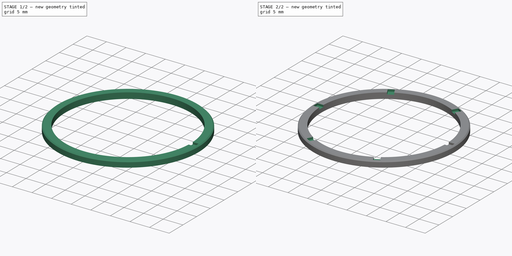
[diagram: build sequence overview — one tinted view per stage of 2, left to right]
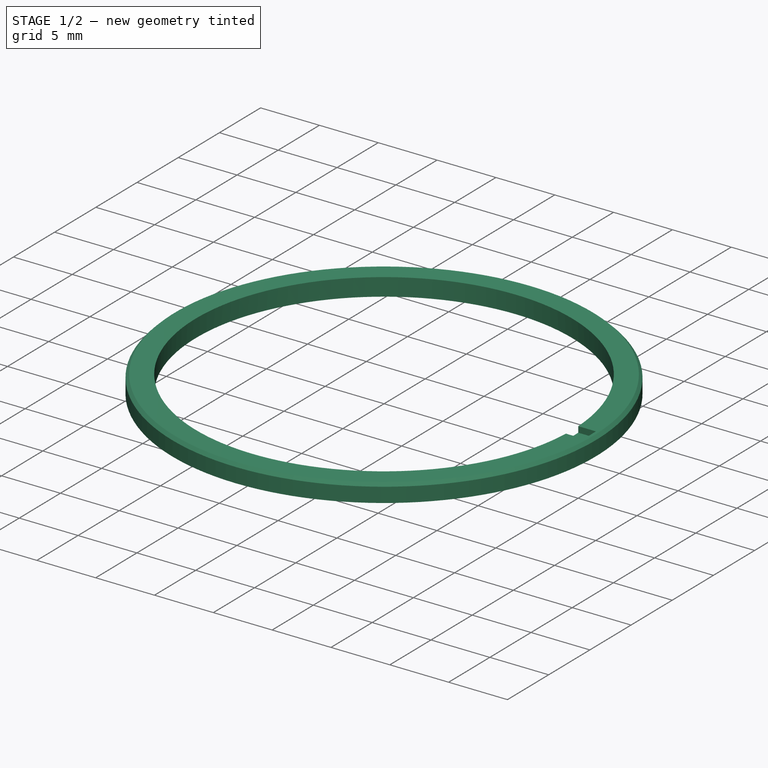
[diagram: stage 1 of 2 — iso view after this stage's code; geometry added in this stage tinted green]
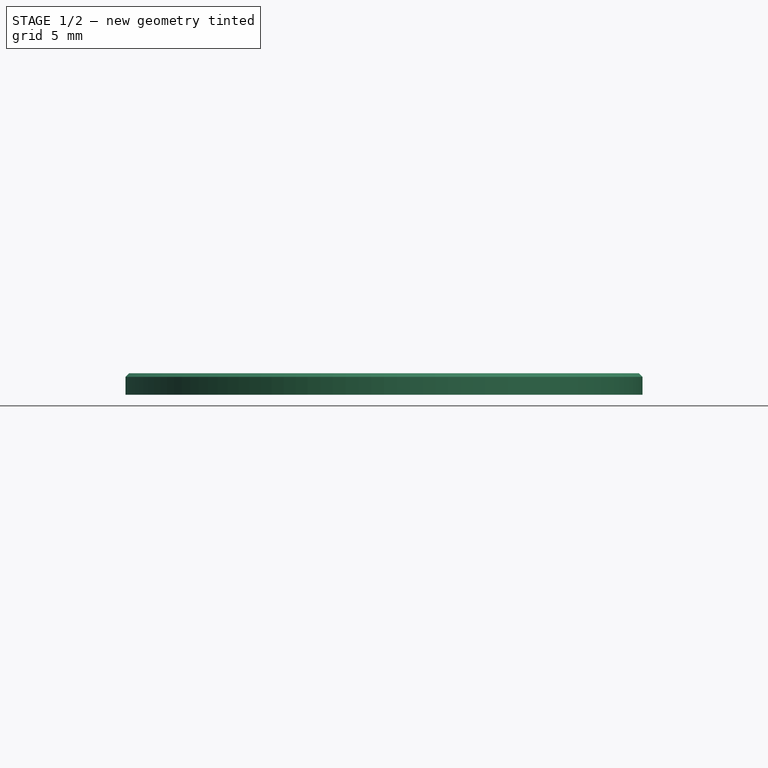
[diagram: stage 1 of 2 — front view after this stage's code; geometry added in this stage tinted green]
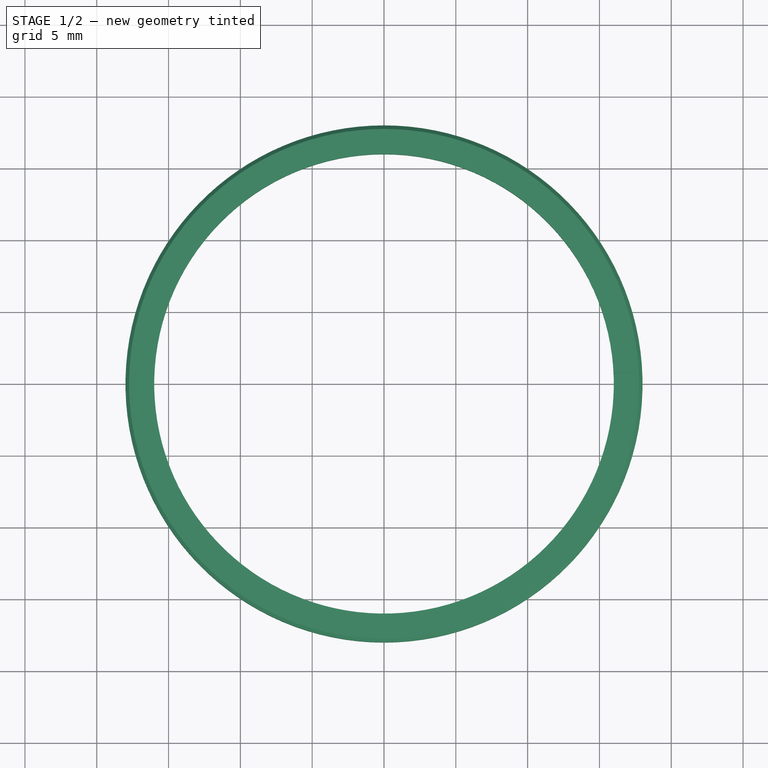
[diagram: stage 1 of 2 — top view after this stage's code; geometry added in this stage tinted green]
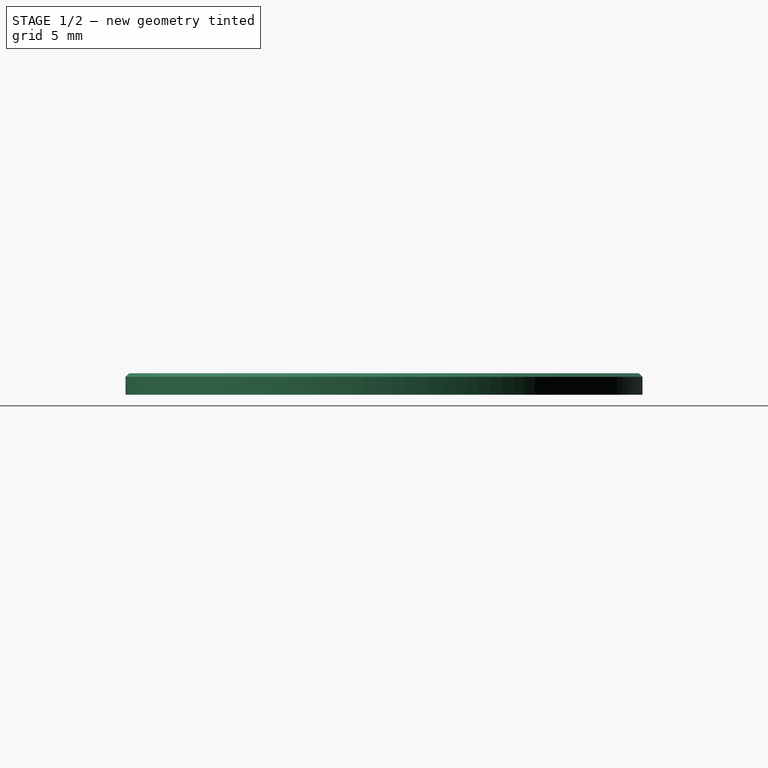
[diagram: stage 1 of 2 — right view after this stage's code; geometry added in this stage tinted green]
FCSTD DOCUMENT  (FreeCAD 0.19R20415 (Git))
Label: Vostok_Amphibia_Ring
License: All rights reserved
LicenseURL: http://en.wikipedia.org/wiki/All_rights_reserved
objects: Sketcher::SketchObject×2, PartDesign::Revolution×1, PartDesign::Pocket×1, PartDesign::PolarPattern×1, PartDesign::Body×1
note: 8 computed .brp shape members not serialized (recipe doc carries the construction recipe); baked Part::Feature solids carry a one-line shape summary decoded from their .brp

FEATURE [Sketcher::SketchObject] Sketch022
  MapMode = 5
  Placement = pos=(0,0,0) rot=(0.57735,0.57735,0.57735;2.0944rad)
  Support = -> [YZ_Plane003]
  sketch-geometry (5):
    g0: LineSegment StartX=16 StartY=0 StartZ=0 EndX=18 EndY=0 EndZ=0
    g1: LineSegment StartX=16 StartY=1.5 StartZ=0 EndX=16 EndY=0 EndZ=0
    g2: LineSegment StartX=16 StartY=1.5 StartZ=0 EndX=17.75 EndY=1.5 EndZ=0
    g3: LineSegment StartX=17.75 StartY=1.5 StartZ=0 EndX=18 EndY=1.25 EndZ=0
    g4: LineSegment StartX=18 StartY=1.25 StartZ=0 EndX=18 EndY=0 EndZ=0
  constraints (15):
    c: Coincident(g1,g0)
    c: Horizontal(g0)
    c: Vertical(g1)
    c: PointOnObject(g0,g-1)
    c: DistanceX(g1) = 16
    c: Coincident(g1,g2)
    c: Horizontal(g2)
    c: Coincident(g2,g3)
    c: Coincident(g3,g4)
    c: Coincident(g4,g0)
    c: Vertical(g4)
    c: DistanceX(g3) = 18
    c: DistanceY(g1) = 1.5
    c: Angle(g3,g4) = 2.35619
    c: DistanceY(g3,g2) = 0.25
FEATURE [PartDesign::Revolution] Revolution003
  AllowMultiFace = false
  Angle = 360
  Axis = (-3e-16,3e-16,1)
  Base = (0,0,0)
  Placement = pos=(0,0,0) rot=(0.57735,0.57735,0.57735;2.0944rad)
  Profile = -> Sketch022
  ReferenceAxis = -> Z_Axis003
  Reversed = true
FEATURE [Sketcher::SketchObject] Sketch023
  MapMode = 5
  Placement = pos=(-8e-16,5e-16,1.5) rot=(0,0,-1;1.5708rad)
  Support = -> [Revolution003]
  sketch-geometry (5):
    g0: LineSegment StartX=-0.75 StartY=15.9824 StartZ=0 EndX=-0.75 EndY=17.4824 EndZ=0
    g1: LineSegment StartX=-0.75 StartY=15.9824 StartZ=0 EndX=0.75 EndY=15.9824 EndZ=0
    g2: LineSegment StartX=0.75 StartY=15.9824 StartZ=0 EndX=0.75 EndY=17.4824 EndZ=0
    g3: ArcOfCircle CenterX=0 CenterY=0 CenterZ=0 NormalX=0 NormalY=0 NormalZ=1 AngleXU=0 Radius=17.4985 StartAngle=1.52792 EndAngle=1.61367
    g4: ArcOfCircle [constr] CenterX=0 CenterY=0 CenterZ=0 NormalX=0 NormalY=0 NormalZ=1 AngleXU=0 Radius=16 StartAngle=1.5239 EndAngle=1.61769
  constraints (14):
    c: Vertical(g0)
    c: Coincident(g0,g1)
    c: Coincident(g1,g2)
    c: Vertical(g2)
    c: Coincident(g3,g-1)
    c: Coincident(g3,g0)
    c: Coincident(g3,g2)
    c: Symmetric(g0,g1,g-2)
    c: DistanceX(g1,g1) = 1.5
    c: DistanceY(g2,g2) = 1.5
    c: Coincident(g4,g3)
    c: Coincident(g4,g1)
    c: Coincident(g4,g0)
    c: Radius(g4) = 16
FEATURE [PartDesign::Pocket] Pocket003
  AllowMultiFace = false
  BaseFeature = -> Revolution003
  Length = 0.5
  Length2 = 100
  Placement = pos=(0,0,0) rot=(0.57735,0.57735,0.57735;2.0944rad)
  Profile = -> Sketch023
  Type = 0
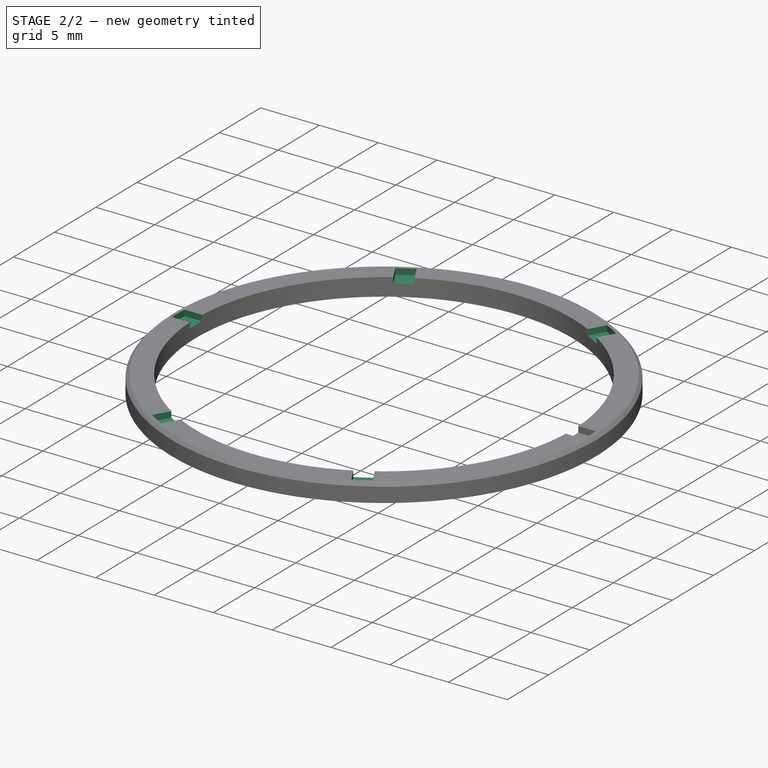
[diagram: stage 2 of 2 — iso view after this stage's code; geometry added in this stage tinted green]
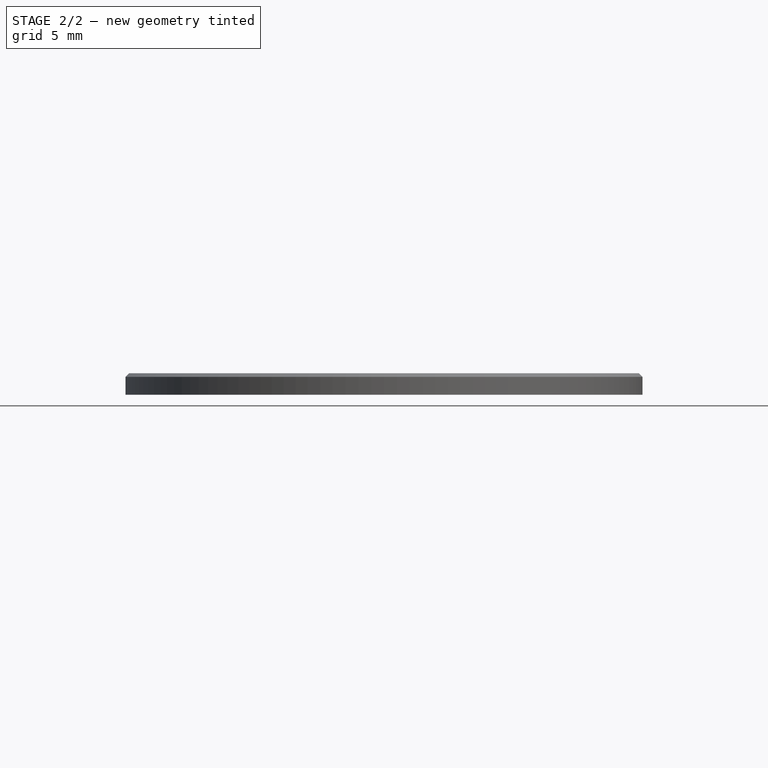
[diagram: stage 2 of 2 — front view after this stage's code; geometry added in this stage tinted green]
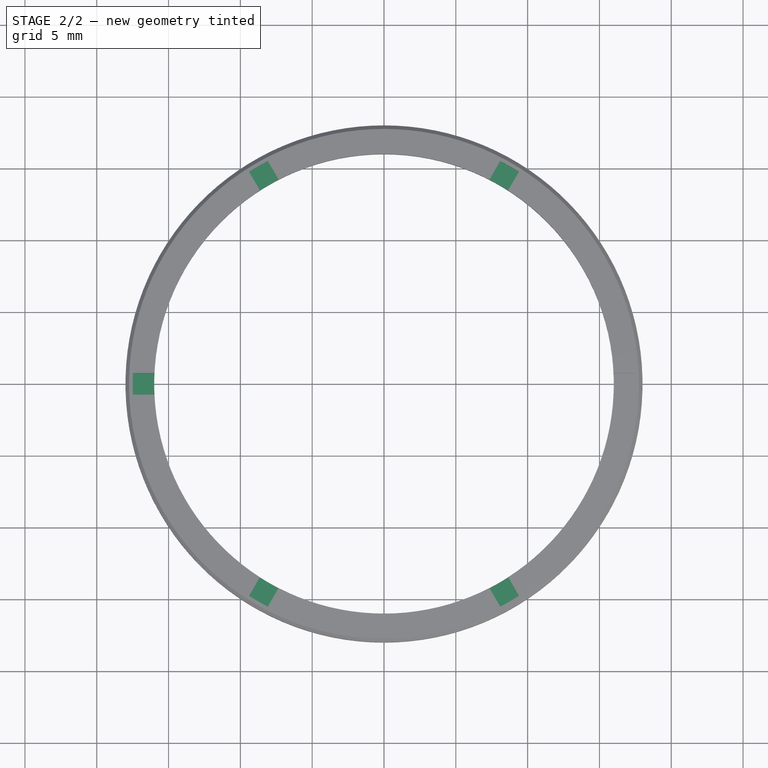
[diagram: stage 2 of 2 — top view after this stage's code; geometry added in this stage tinted green]
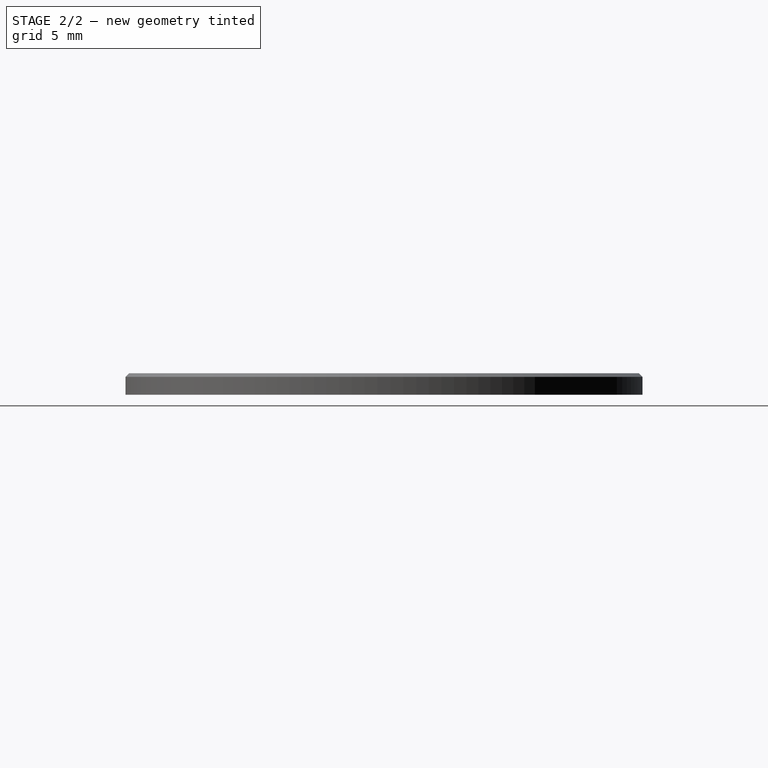
[diagram: stage 2 of 2 — right view after this stage's code; geometry added in this stage tinted green]
FEATURE [PartDesign::PolarPattern] PolarPattern
  Angle = 360
  Axis = -> Sketch023 [N_Axis]
  BaseFeature = -> Pocket003
  Occurrences = 6
  Originals = -> [Pocket003]
  Placement = pos=(0,0,0) rot=(0.57735,0.57735,0.57735;2.0944rad)
FEATURE [PartDesign::Body] Body003  label="Ring"
  Group = -> [Sketch022,Revolution003,Sketch023,Pocket003,PolarPattern]
  Origin = -> Origin003
  Placement = pos=(0,3e-15,0) rot=(1,0,0;3.14159rad)
  Tip = -> PolarPattern
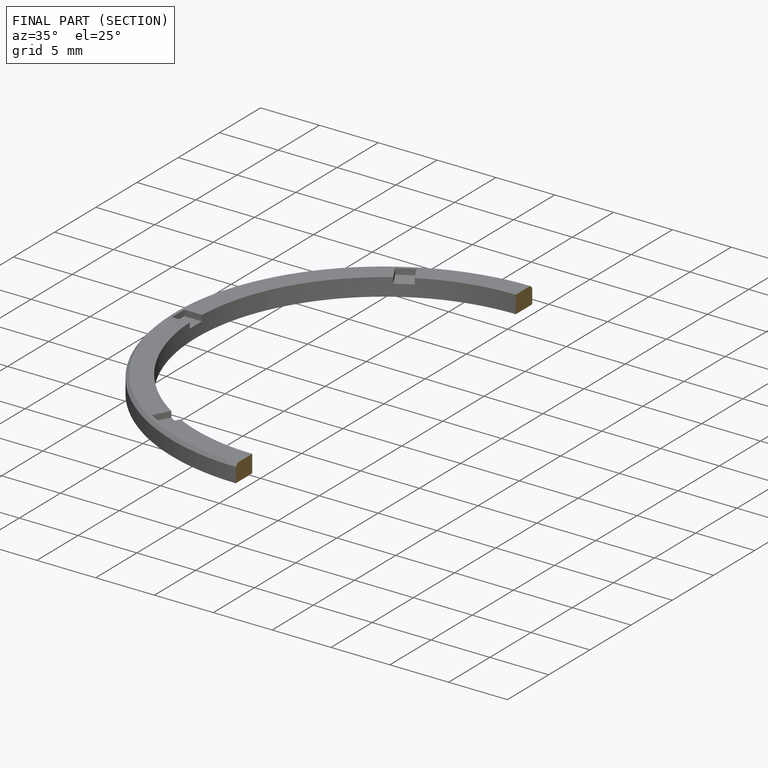
[diagram: finished part — half-section view (interior)]
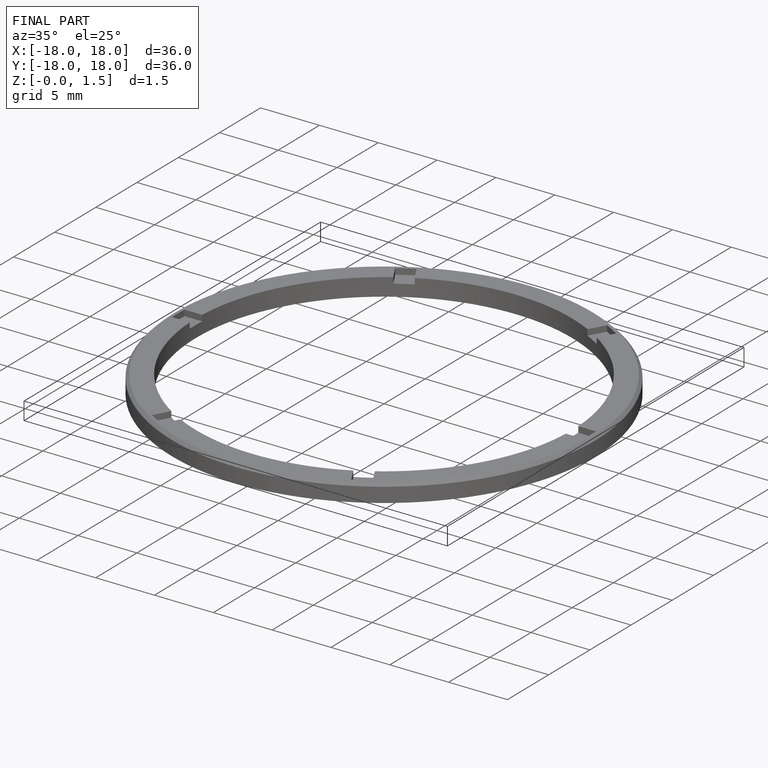
[diagram: finished part — iso view with bounding-box wireframe]
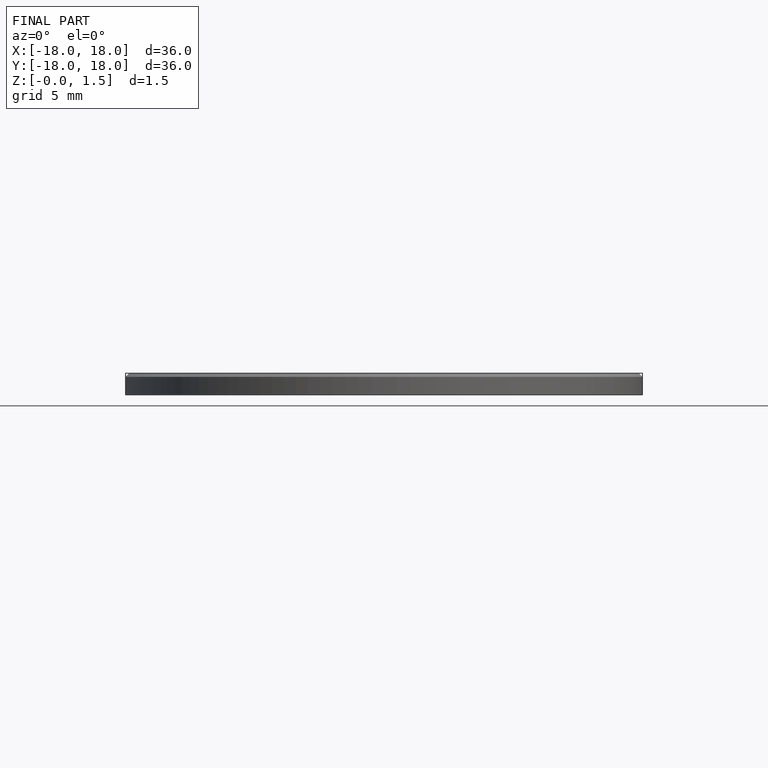
[diagram: finished part — front view with bounding-box wireframe]
